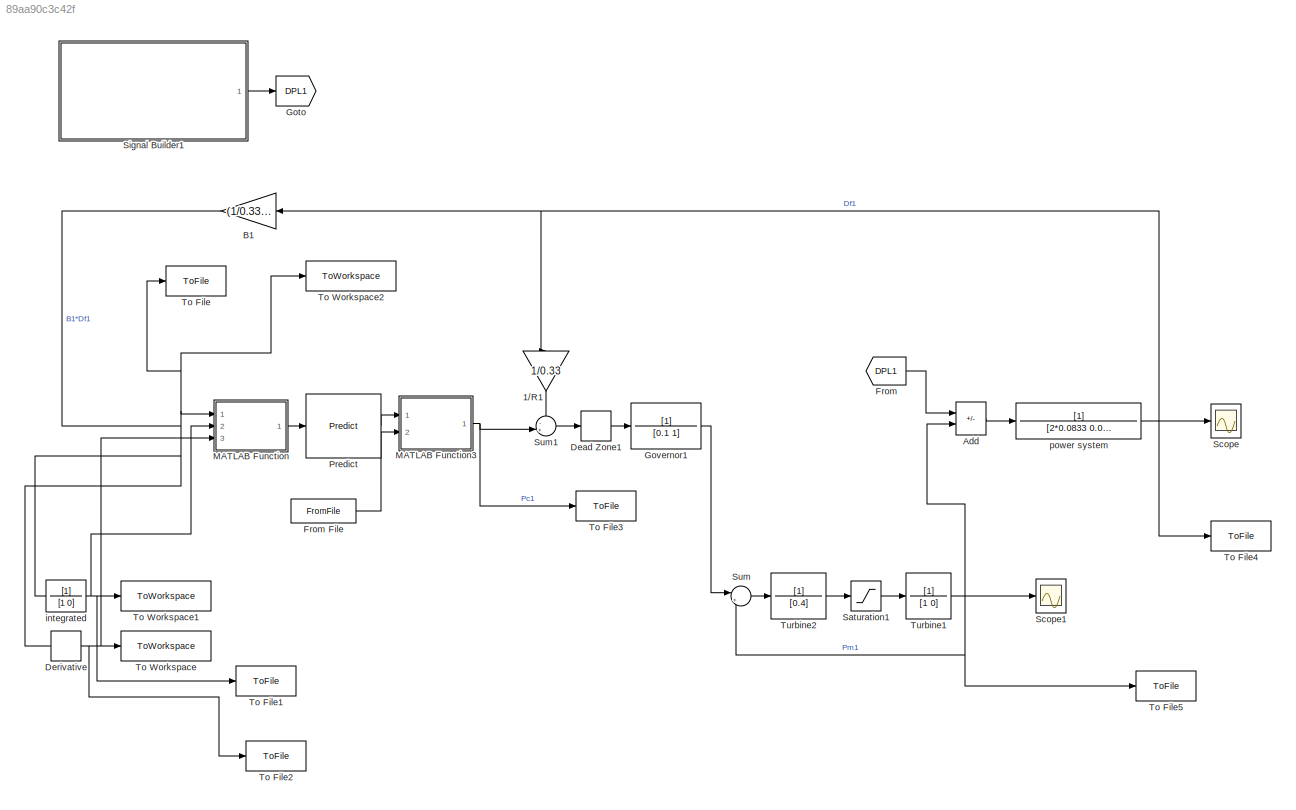
MODEL slx_89aa90c3c42f
KIND model
CONFIG AbsTol = auto
CONFIG EnableMultiTasking = off
CONFIG FixedStep = 0.001
CONFIG MaxStep = auto
CONFIG MinStep = auto
CONFIG RelTol = 1e-3
CONFIG SampleTimeConstraint = Unconstrained
CONFIG SolverName = VariableStepAuto
CONFIG StartTime = 0.0
CONFIG StopTime = 38
BLOCK [Gain] 1//R1
  Gain = 1/0.33
  NameLocation = left
BLOCK [Sum] Add
  IconShape = rectangular
  Inputs = -+
  Ports = [2, 1]
BLOCK [Gain] B1
  Gain = (1/0.33+0.0015)
  NameLocation = top
BLOCK [DeadZone] Dead Zone1
  LowerValue = -0.06
  UpperValue = 0.06
BLOCK [Derivative] Derivative
BLOCK [From] From
  GotoTag = DPL1
  NameLocation = top
BLOCK [FromFile] From File
  FileName = ma_noise.mat
  SampleTime = 0
BLOCK [Goto] Goto
  GotoTag = DPL1
BLOCK [TransferFcn] Governor1
  Denominator = [0.1 1]
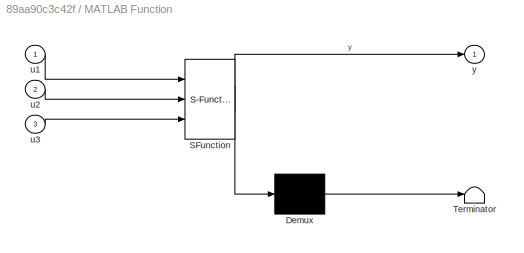
BLOCK [SubSystem] MATLAB Function
  ErrorFcn = Stateflow.Translate.translate
  PermitHierarchicalResolution = ExplicitOnly
  Ports = [3, 1]
  RequestExecContextInheritance = off
  SFBlockType = MATLAB Function
  SystemSampleTime = 0.01
  TreatAsAtomicUnit = on
BLOCK [Demux] MATLAB Function/ Demux 
  Outputs = 1
  Ports = [1, 1]
BLOCK [S-Function] MATLAB Function/ SFunction 
  EnableBusSupport = on
  FunctionName = sf_sfun
  PortCounts = [3 2]
  Ports = [3, 2]
  SFcnIsStateOwnerBlock = off
  SFunctionDeploymentMode = off
  Tag = Stateflow S-Function 2
BLOCK [Terminator] MATLAB Function/ Terminator 
BLOCK [Inport] MATLAB Function/u1
BLOCK [Inport] MATLAB Function/u2
  Port = 2
BLOCK [Inport] MATLAB Function/u3
  Port = 3
BLOCK [Outport] MATLAB Function/y
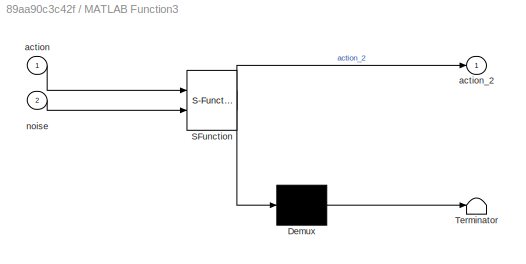
BLOCK [SubSystem] MATLAB Function3
  ErrorFcn = Stateflow.Translate.translate
  PermitHierarchicalResolution = ExplicitOnly
  Ports = [2, 1]
  RequestExecContextInheritance = off
  SFBlockType = MATLAB Function
  SystemSampleTime = 0.01
  TreatAsAtomicUnit = on
BLOCK [Demux] MATLAB Function3/ Demux 
  Outputs = 1
  Ports = [1, 1]
BLOCK [S-Function] MATLAB Function3/ SFunction 
  EnableBusSupport = on
  FunctionName = sf_sfun
  PortCounts = [2 2]
  Ports = [2, 2]
  SFcnIsStateOwnerBlock = off
  SFunctionDeploymentMode = off
  Tag = Stateflow S-Function 5
BLOCK [Terminator] MATLAB Function3/ Terminator 
BLOCK [Inport] MATLAB Function3/action
BLOCK [Outport] MATLAB Function3/action_2
BLOCK [Inport] MATLAB Function3/noise
  Port = 2
BLOCK [Reference] Predict  REF=deeplib/Predict
  Ports = [1, 1]
  SourceBlock = deeplib/Predict
  SourceProductBaseCode = NN
  SourceType = Predict
BLOCK [Saturate] Saturation1
  LowerLimit = -0.1
  UpperLimit = 0.1
BLOCK [Scope] Scope
  Floating = off
  NumInputPorts = 1
  Ports = [1]
  ScopeSpecificationString = Simulink.scopes.TimeScopeBlockCfg('CurrentConfiguration', extmgr.ConfigurationSet(extmgr.Configuration('Core','General UI',true),extmgr.Configuration('Core','Source UI',true),extmgr.Configuration('Sources','WiredSimulink',true),extmgr.Configuration('Visuals','Time Domain',true,'SerializedDisplays',{struct('MinYLimReal','-0.04249','MaxYLimReal','0.0438','YLabelReal','','MinYLimMag','0.00000','MaxYL...<+1396ch>
BLOCK [Scope] Scope1
  Floating = off
  NumInputPorts = 1
  Ports = [1]
  ScopeSpecificationString = Simulink.scopes.TimeScopeBlockCfg('CurrentConfiguration', extmgr.ConfigurationSet(extmgr.Configuration('Core','General UI',true),extmgr.Configuration('Core','Source UI',true),extmgr.Configuration('Sources','WiredSimulink',true,'DataLoggingVariableName','ScopeData1'),extmgr.Configuration('Visuals','Time Domain',true,'SerializedDisplays',{struct('MinYLimReal','-0.05362','MaxYLimReal','0.06403','YLab...<+1442ch>
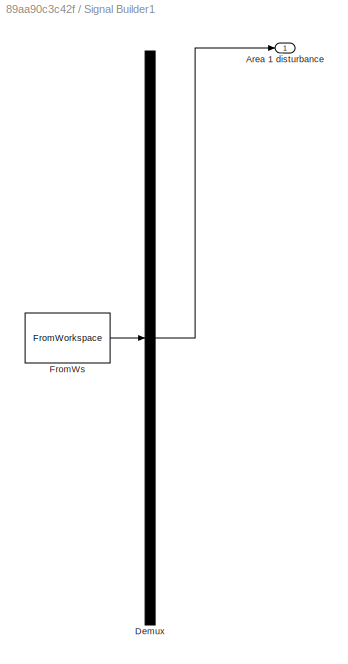
BLOCK [SubSystem] Signal Builder1
  ClipboardFcn = sigbuilder_block('clipboard');
  CloseFcn = sigbuilder_block('close');
  ContinueFcn = sigbuilder_block('continue');
  CopyFcn = sigbuilder_block('copy');
  DeleteFcn = sigbuilder_block('delete');
  LoadFcn = sigbuilder_block('load');
  MaskHideContents = on
  ModelCloseFcn = sigbuilder_block('modelClose');
  NameChangeFcn = sigbuilder_block('namechange');
  OpenFcn = sigbuilder_block('open',[219 42 1141.5 523.5 ]);
  PauseFcn = sigbuilder_block('pause');
  Ports = [0, 1]
  PreSaveFcn = sigbuilder_block('preSave');
  RequestExecContextInheritance = off
  StartFcn = sigbuilder_block('start');
  StopFcn = sigbuilder_block('stop');
  Tag = STV Subsys
BLOCK [Outport] Signal Builder1/Area 1 disturbance
  Tag = STV Outport
BLOCK [Demux] Signal Builder1/Demux
  DisplayOption = none
  Outputs = 1
  Ports = [1, 1]
  Tag = STV Demux
BLOCK [FromWorkspace] Signal Builder1/FromWs
  Tag = STV FromWs
  VariableName = tuvar
BLOCK [Sum] Sum
  Inputs = |+-
  Ports = [2, 1]
BLOCK [Sum] Sum1
  Inputs = -+|
  NameLocation = top
  Ports = [2, 1]
BLOCK [ToFile] To File
  Filename = simulinkData\ACE_pro.mat
  Ports = [1]
  SampleTime = 0.01
BLOCK [ToFile] To File1
  Filename = simulinkData\ACE_inte.mat
  Ports = [1]
  SampleTime = 0.01
BLOCK [ToFile] To File2
  Filename = simulinkData\ACE_dev.mat
  Ports = [1]
  SampleTime = 0.01
BLOCK [ToFile] To File3
  Filename = simulinkData\delta_Pc.mat
  Ports = [1]
  SampleTime = 0.01
BLOCK [ToFile] To File4
  Filename = simulinkData\delta_f.mat
  Ports = [1]
  SampleTime = 0.01
BLOCK [ToFile] To File5
  Filename = simulinkData\delta_Pm.mat
  Ports = [1]
  SampleTime = 0.01
BLOCK [ToWorkspace] To Workspace
  FixptAsFi = on
  MaxDataPoints = inf
  Ports = [1]
  SampleTime = 0.01
  SaveFormat = Timeseries
  VariableName = ACE_dev
BLOCK [ToWorkspace] To Workspace1
  FixptAsFi = on
  MaxDataPoints = inf
  Ports = [1]
  SampleTime = 0.01
  SaveFormat = Timeseries
  VariableName = ACE_inte
BLOCK [ToWorkspace] To Workspace2
  FixptAsFi = on
  MaxDataPoints = inf
  Ports = [1]
  SampleTime = 0.01
  SaveFormat = Timeseries
  VariableName = ACE_pro
BLOCK [TransferFcn] Turbine1
  Denominator = [1 0]
BLOCK [TransferFcn] Turbine2
  Denominator = [0.4]
BLOCK [TransferFcn] integrated
  Denominator = [1 0]
BLOCK [TransferFcn] power system
  Denominator = [2*0.0833 0.0015]
LINE 1//R1:1 -> Sum1:1
LINE Add:1 -> power system:1
NET B1:1 -> Derivative:1, MATLAB Function:1, To File:1, To Workspace2:1, integrated:1
LINE Dead Zone1:1 -> Governor1:1
NET Derivative:1 -> MATLAB Function:3, To File2:1, To Workspace:1
LINE From File:1 -> MATLAB Function3:2
LINE From:1 -> Add:1
LINE Governor1:1 -> Sum:1
NET MATLAB Function3:1 -> Sum1:2, To File3:1
LINE MATLAB Function:1 -> Predict:1
LINE Predict:1 -> MATLAB Function3:1
LINE Saturation1:1 -> Turbine1:1
LINE Signal Builder1:1 -> Goto:1
LINE Sum1:1 -> Dead Zone1:1
LINE Sum:1 -> Turbine2:1
NET Turbine1:1 -> Add:2, Scope1:1, Sum:2, To File5:1
LINE Turbine2:1 -> Saturation1:1
NET integrated:1 -> MATLAB Function:2, To File1:1, To Workspace1:1
NET power system:1 -> 1//R1:1, B1:1, Scope:1, To File4:1
note: NET lines group one-source signal fan-out (src -> all destinations, sorted); 1:1 wires keep LINE
CHART MATLAB Function states=1 transitions=1
  STATE_LABEL 'eML_blk_kernel()'
  STATE_LABEL "SCRIPT:\nfunction y = fcn(u1, u2 ,u3)\nnum =1;\n% net = coder.loadDeepLearningNetwork('bbb.mat');\nstatemax = [[0.0883, 0.0269, 0.5483]\n                     [0.0305, 0.0970, 0.0190]\n                     [0.0363, 0.0766, 0.0296]];\nstatemin = [[-0.0887, -0.0279, -0.5488]\n                     [-0.0301, -0.1188, -0.0190]\n                     [-0.0366, -0.0952, -0.0298]];\n\ny1 = (u1-statemin(num ,1))/(state...<+310ch>"
CHART MATLAB Function3 states=1 transitions=1
  STATE_LABEL 'eML_blk_kernel()'
  STATE_LABEL 'SCRIPT:\nfunction action_2= fcn(action, noise)\nnum =1;\nnoise =1 ;\n\nactionmax = [0.5296, 0.1458, 0.0943];\nactionmin = [-0.5192, -0.1192 -0.0760];\n\naction_2 = double(noise * ((action+1)*(actionmax(num)-actionmin(num))/2 + actionmin(num)));\n'
CHART  states=0 transitions=0
CHART  states=0 transitions=0
